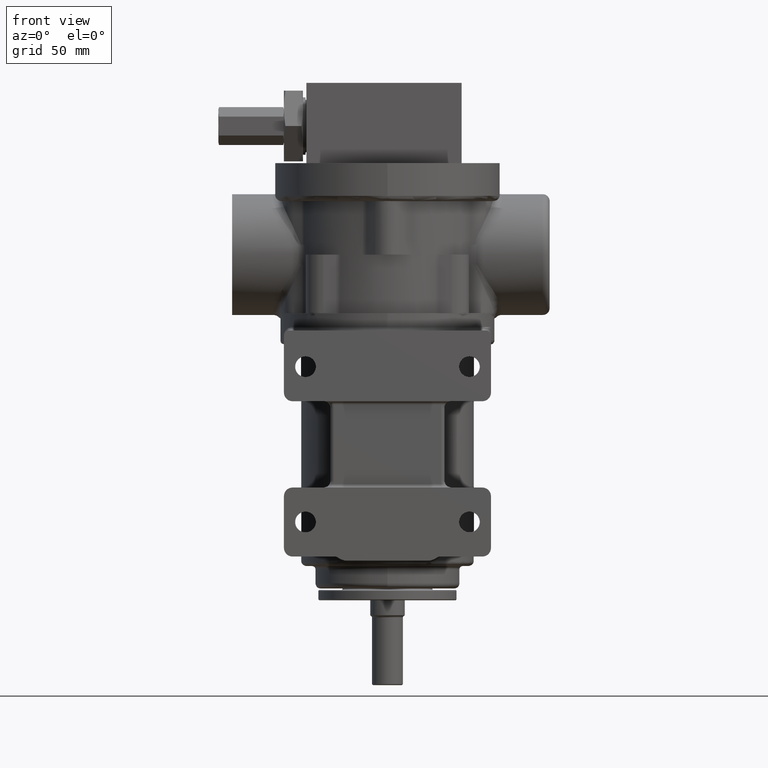
[diagram: clean part render]
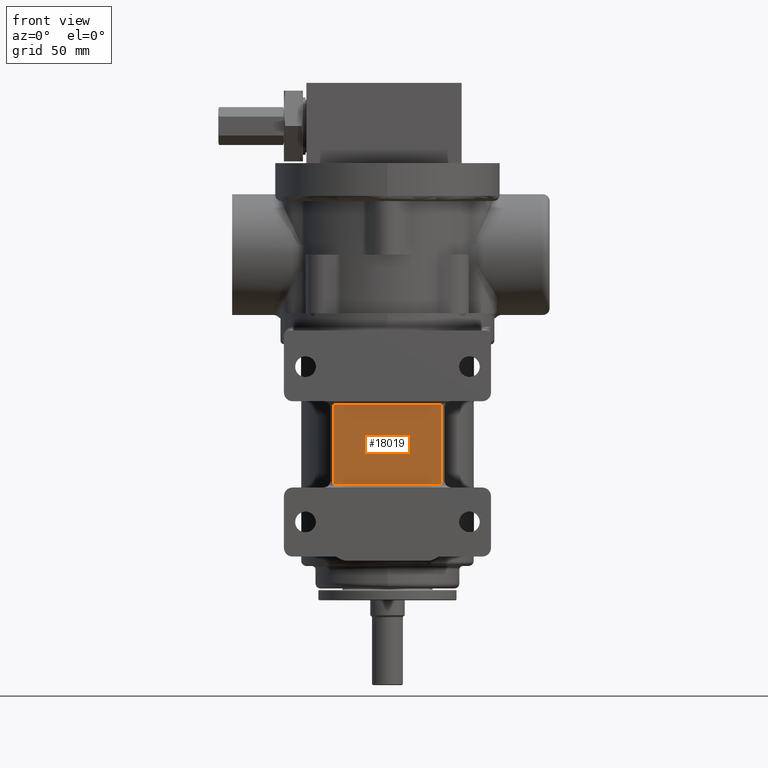
[diagram: same view with one face highlighted and labeled with its STEP entity id]
A machine part, front view. The second image highlights one B-rep face of the part: STEP entity #18019.
In plain terms, the highlighted planar face has unit normal (0, -1, 0).
Its self-contained STEP definition (entity closure, byte-faithful):
#4344=DIRECTION('',(1.E0,0.E0,2.221640062374E-14));
#4345=VECTOR('',#4344,6.268629134288E1);
#4346=CARTESIAN_POINT('',(-3.134314565817E1,-7.5E1,-4.500000000001E1));
#4347=LINE('',#4346,#4345);
#4348=CARTESIAN_POINT('',(3.7E1,-7.5E1,-4.7E1));
#4349=DIRECTION('',(0.E0,-1.E0,0.E0));
#4350=DIRECTION('',(-9.428090464546E-1,0.E0,3.333333195517E-1));
#4351=AXIS2_PLACEMENT_3D('',#4348,#4349,#4350);
#4353=DIRECTION('',(-7.090032266204E-12,0.E0,-1.E0));
#4354=VECTOR('',#4353,4.199999999283E1);
#4355=CARTESIAN_POINT('',(3.100000000210E1,-7.5E1,-4.700000000430E1));
#4356=LINE('',#4355,#4354);
#4357=CARTESIAN_POINT('',(3.7E1,-7.5E1,-8.9E1));
#4358=DIRECTION('',(0.E0,-1.E0,0.E0));
#4359=DIRECTION('',(-1.E0,0.E0,0.E0));
#4360=AXIS2_PLACEMENT_3D('',#4357,#4358,#4359);
#4362=DIRECTION('',(-1.E0,0.E0,-2.221640062327E-14));
#4363=VECTOR('',#4362,6.268629134420E1);
#4364=CARTESIAN_POINT('',(3.134314565879E1,-7.5E1,-9.099999999999E1));
#4365=LINE('',#4364,#4363);
#4366=CARTESIAN_POINT('',(-3.7E1,-7.5E1,-8.9E1));
#4367=DIRECTION('',(0.E0,-1.E0,0.E0));
#4368=DIRECTION('',(9.428090464029E-1,0.E0,-3.333333196978E-1));
#4369=AXIS2_PLACEMENT_3D('',#4366,#4367,#4368);
#4371=DIRECTION('',(-1.644745715605E-11,0.E0,1.E0));
#4372=VECTOR('',#4371,4.199999999182E1);
#4373=CARTESIAN_POINT('',(-3.100000000184E1,-7.5E1,-8.899999999625E1));
#4374=LINE('',#4373,#4372);
#4375=CARTESIAN_POINT('',(-3.7E1,-7.5E1,-4.7E1));
#4376=DIRECTION('',(0.E0,-1.E0,0.E0));
#4377=DIRECTION('',(1.E0,0.E0,0.E0));
#4378=AXIS2_PLACEMENT_3D('',#4375,#4376,#4377);
#4566=CARTESIAN_POINT('',(-3.134314568541E1,-7.5E1,-9.1E1));
#4769=CARTESIAN_POINT('',(3.134314568471E1,-7.5E1,-4.5E1));
#11895=CARTESIAN_POINT('',(3.100000000210E1,-7.5E1,-4.700000000430E1));
#11896=CARTESIAN_POINT('',(3.100000000181E1,-7.5E1,-8.899999999713E1));
#11897=VERTEX_POINT('',#11895);
#11898=VERTEX_POINT('',#11896);
#11901=CARTESIAN_POINT('',(-3.100000000184E1,-7.5E1,-8.899999999625E1));
#11902=CARTESIAN_POINT('',(-3.100000000253E1,-7.5E1,-4.700000000443E1));
#11903=VERTEX_POINT('',#11901);
#11904=VERTEX_POINT('',#11902);
#11905=VERTEX_POINT('',#4769);
#11908=CARTESIAN_POINT('',(-3.134314565817E1,-7.5E1,-4.500000000001E1));
#11909=VERTEX_POINT('',#11908);
#11913=VERTEX_POINT('',#4566);
#11916=CARTESIAN_POINT('',(3.134314565879E1,-7.5E1,-9.099999999999E1));
#11917=VERTEX_POINT('',#11916);
#17998=CARTESIAN_POINT('',(-3.3E1,-7.5E1,-9.3E1));
#17999=DIRECTION('',(0.E0,-1.E0,0.E0));
#18000=DIRECTION('',(1.E0,0.E0,0.E0));
#18001=AXIS2_PLACEMENT_3D('',#17998,#17999,#18000);
#18002=PLANE('',#18001);
#18004=ORIENTED_EDGE('',*,*,#18003,.T.);
#18006=ORIENTED_EDGE('',*,*,#18005,.T.);
#18008=ORIENTED_EDGE('',*,*,#18007,.T.);
#18009=ORIENTED_EDGE('',*,*,#17900,.T.);
#18010=ORIENTED_EDGE('',*,*,#17989,.T.);
#18012=ORIENTED_EDGE('',*,*,#18011,.T.);
#18014=ORIENTED_EDGE('',*,*,#18013,.T.);
#18016=ORIENTED_EDGE('',*,*,#18015,.T.);
#18017=EDGE_LOOP('',(#18004,#18006,#18008,#18009,#18010,#18012,#18014,#18016));
#18018=FACE_OUTER_BOUND('',#18017,.F.);
#18019=ADVANCED_FACE('',(#18018),#18002,.T.);
#4352=CIRCLE('',#4351,6.E0);
#4361=CIRCLE('',#4360,6.E0);
#4370=CIRCLE('',#4369,6.E0);
#4379=CIRCLE('',#4378,6.E0);
#17900=EDGE_CURVE('',#11898,#11917,#4361,.T.);
#17989=EDGE_CURVE('',#11917,#11913,#4365,.T.);
#18003=EDGE_CURVE('',#11909,#11905,#4347,.T.);
#18005=EDGE_CURVE('',#11905,#11897,#4352,.T.);
#18007=EDGE_CURVE('',#11897,#11898,#4356,.T.);
#18011=EDGE_CURVE('',#11913,#11903,#4370,.T.);
#18013=EDGE_CURVE('',#11903,#11904,#4374,.T.);
#18015=EDGE_CURVE('',#11904,#11909,#4379,.T.);